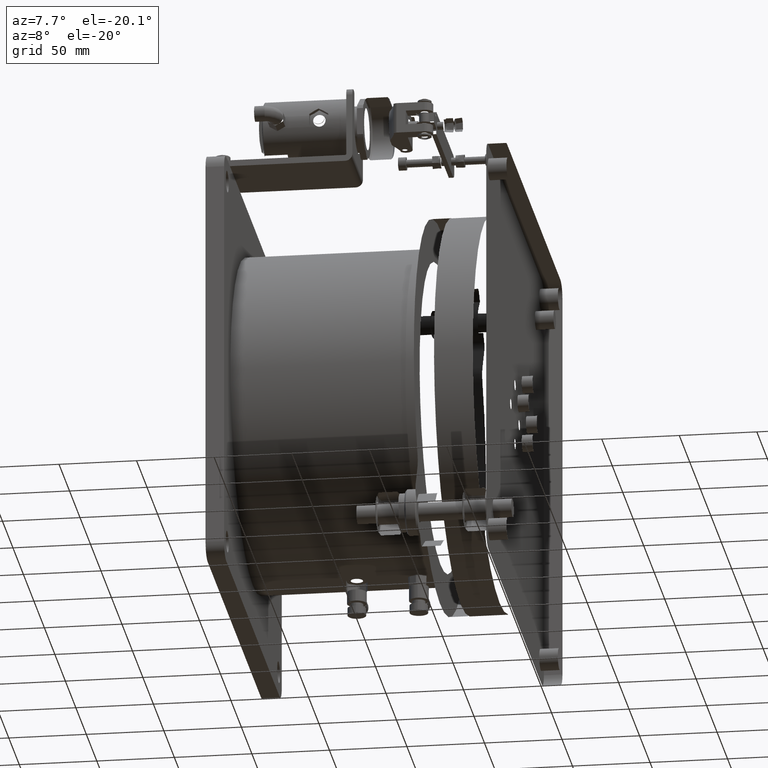
[diagram: clean part render]
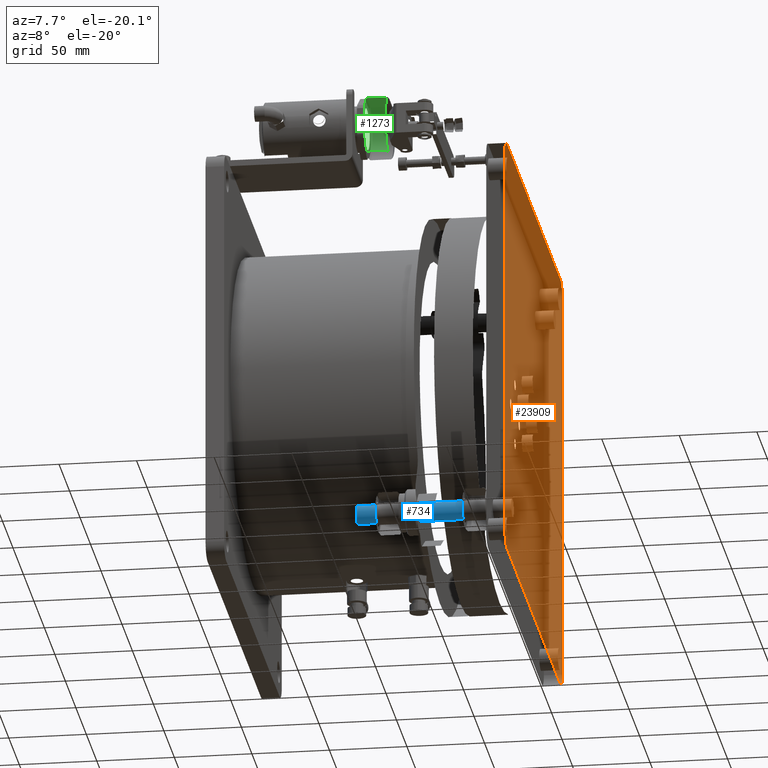
[diagram: same view with three faces highlighted in distinct colors, each labeled with its STEP entity id]
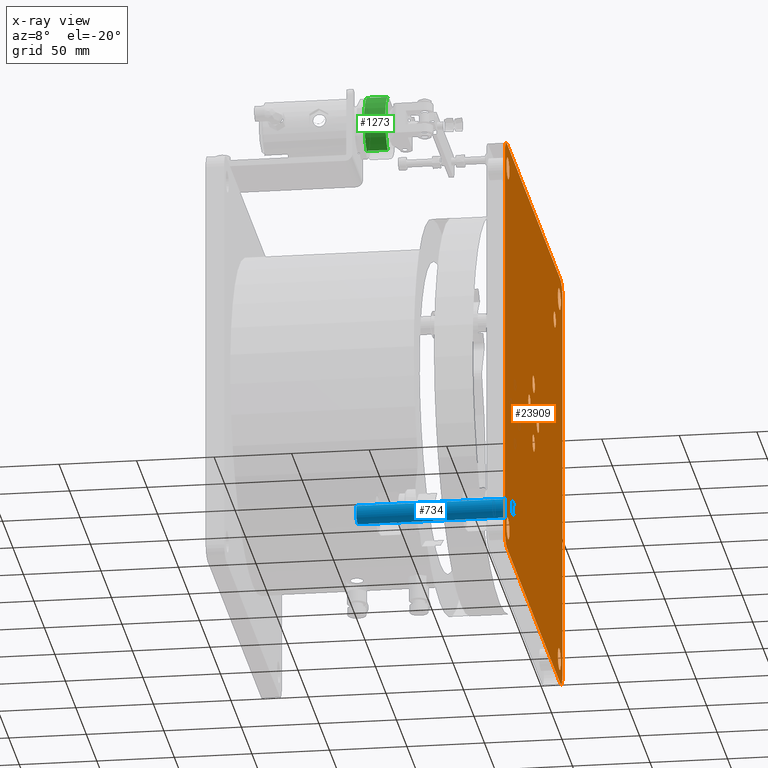
[diagram: x-ray of the same camera — body ghosted, the three highlighted faces saturated]
A machine part, auxiliary view with three faces highlighted in distinct colors.
The next image is the same camera in x-ray (body ghosted, the three faces saturated) — at least one of them is partly hidden behind the body in this view.
Their STEP definitions:

[orange] entity #23909 — the highlighted planar face has unit normal (1, 0, 0).
#72 = CARTESIAN_POINT ( 'NONE',  ( 760.2532529064094433, -110.9514340065374967, 320.4969072935293184 ) ) ;
#74 = CARTESIAN_POINT ( 'NONE',  ( 760.2532529064096707, 116.4269346752785310, 288.5684939441189840 ) ) ;
#172 = EDGE_CURVE ( 'NONE', #18632, #5377, #20006, .T. ) ;
#202 = CARTESIAN_POINT ( 'NONE',  ( 760.2532529064096707, -106.8232251716477208, 323.7112218964473414 ) ) ;
#324 = CARTESIAN_POINT ( 'NONE',  ( 760.2532529064098981, -114.6582469358364875, 321.4922531187802406 ) ) ;
#418 = DIRECTION ( 'NONE',  ( 0.000000000000000000, 1.000000000000000000, 0.000000000000000000 ) ) ;
#444 = CARTESIAN_POINT ( 'NONE',  ( 760.2532529064095570, -112.4626823020331727, 320.5466482858456629 ) ) ;
#451 = CARTESIAN_POINT ( 'NONE',  ( 760.2532529064096707, -112.6430295829798922, 330.5552960744896609 ) ) ;
#476 = CARTESIAN_POINT ( 'NONE',  ( 760.2532529064096707, 87.70326957855201044, 531.3712482051279267 ) ) ;
#541 = CARTESIAN_POINT ( 'NONE',  ( 760.2532529064097844, 91.15059977192318286, 521.7657396830934431 ) ) ;
#583 = CARTESIAN_POINT ( 'NONE',  ( 760.2532529064096707, -115.9359704439172845, 322.9218196549976483 ) ) ;
#589 = CARTESIAN_POINT ( 'NONE',  ( 760.2532529064097844, -115.8898515023916076, 328.2856607191998819 ) ) ;
#614 = CARTESIAN_POINT ( 'NONE',  ( 760.2532529064097844, 88.47977434240154082, 531.5798057435645205 ) ) ;
#714 = CARTESIAN_POINT ( 'NONE',  ( 760.2532529064097844, -113.5302936437208530, 330.2781745972658882 ) ) ;
#737 = CARTESIAN_POINT ( 'NONE',  ( 760.2532529064095570, 94.15364652930199441, 528.4841814433872287 ) ) ;
#791 = CARTESIAN_POINT ( 'NONE',  ( 760.2532529064097844, 84.32693467527839459, 526.2563752080758377 ) ) ;
#828 = CARTESIAN_POINT ( 'NONE',  ( 760.2532529064098981, -112.4807681925683340, 320.5498805688915809 ) ) ;
#832 = CARTESIAN_POINT ( 'NONE',  ( 760.2532529064097844, -116.6730653247214349, 325.8926688058249965 ) ) ;
#856 = CARTESIAN_POINT ( 'NONE',  ( 760.2532529064096707, 86.78026038612354398, 530.9313990632986133 ) ) ;
#920 = CARTESIAN_POINT ( 'NONE',  ( 760.2532529064096707, 84.47154438497423712, 525.3575819295108431 ) ) ;
#966 = CARTESIAN_POINT ( 'NONE',  ( 760.2532529064096707, -113.9974821835346575, 330.0612254758217432 ) ) ;
#1075 = DIRECTION ( 'NONE',  ( -0.000000000000000000, -1.000000000000000000, -5.551115123125781470E-17 ) ) ;
#1164 = DIRECTION ( 'NONE',  ( 0.000000000000000000, 1.000000000000000000, 0.000000000000000000 ) ) ;
#1291 = CARTESIAN_POINT ( 'NONE',  ( 760.2532529064098981, 84.63442626224659193, 528.3135241945261669 ) ) ;
#1421 = VECTOR ( 'NONE', #1075, 1000.000000000000000 ) ;
#1497 = CARTESIAN_POINT ( 'NONE',  ( 760.2532529064095570, -106.7703110637126684, 327.2921590408419661 ) ) ;
#1616 = CARTESIAN_POINT ( 'NONE',  ( 760.2532529064094433, -106.6905684890815422, 327.0582866678765299 ) ) ;
#1766 = CARTESIAN_POINT ( 'NONE',  ( 760.2532529064100117, 94.17677482835631508, 524.7112218964548447 ) ) ;
#1846 = CARTESIAN_POINT ( 'NONE',  ( 760.2532529064096707, -138.5730653247215116, 288.5684939441189840 ) ) ;
#1924 = EDGE_CURVE ( 'NONE', #22872, #22872, #4711, .T. ) ;
#2033 = CARTESIAN_POINT ( 'NONE',  ( 760.2532529064096707, -109.1486484659734657, 321.0757624123723417 ) ) ;
#2356 = CIRCLE ( 'NONE', #21216, 10.00000000000000888 ) ;
#2358 = DIRECTION ( 'NONE',  ( 0.000000000000000000, 1.000000000000000000, 0.000000000000000000 ) ) ;
#2381 = CARTESIAN_POINT ( 'NONE',  ( 760.2532529064096707, 86.92988053294241979, 522.1207355152475884 ) ) ;
#2410 = DIRECTION ( 'NONE',  ( -1.000000000000000000, -1.884943910572088157E-17, -5.246141952597420296E-18 ) ) ;
#2422 = EDGE_CURVE ( 'NONE', #13299, #13299, #25276, .T. ) ;
#2426 = CARTESIAN_POINT ( 'NONE',  ( 760.2532529064096707, -112.1946966428210715, 330.6400805947098434 ) ) ;
#2446 = CARTESIAN_POINT ( 'NONE',  ( 760.2532529064096707, 86.56411720645941443, 530.7900570453517730 ) ) ;
#2505 = CARTESIAN_POINT ( 'NONE',  ( 760.2532529064096707, 87.15531222075216533, 521.9966064593999135 ) ) ;
#2521 = DIRECTION ( 'NONE',  ( -1.000000000000000000, -1.884943910572088157E-17, -5.246141952597420296E-18 ) ) ;
#2545 = CARTESIAN_POINT ( 'NONE',  ( 760.2532529064098981, -112.3666035088061932, 320.5303429757446452 ) ) ;
#2551 = CARTESIAN_POINT ( 'NONE',  ( 760.2532529064097844, -110.6653624568743339, 330.5871073193475809 ) ) ;
#2579 = CARTESIAN_POINT ( 'NONE',  ( 760.2532529064097844, 88.21602266063493403, 531.5238842344248269 ) ) ;
#2641 = CARTESIAN_POINT ( 'NONE',  ( 760.2532529064096707, 84.44013254490825204, 525.4985296858890251 ) ) ;
#2683 = CARTESIAN_POINT ( 'NONE',  ( 760.2532529064094433, -116.2827459778687711, 323.6112656251163457 ) ) ;
#2689 = CARTESIAN_POINT ( 'NONE',  ( 760.2532529064096707, -116.6730653247214349, 325.5684939441196661 ) ) ;
#2714 = CARTESIAN_POINT ( 'NONE',  ( 760.2532529064098981, 94.30943151089859100, 528.0582866679313838 ) ) ;
#2777 = CARTESIAN_POINT ( 'NONE',  ( 760.2532529064096707, 87.70427114160780491, 521.7680553047671310 ) ) ;
#2815 = CARTESIAN_POINT ( 'NONE',  ( 760.2532529064097844, -116.3758195857232494, 323.8448288473828711 ) ) ;
#2820 = CARTESIAN_POINT ( 'NONE',  ( 760.2532529064098981, -116.6283053666487604, 326.3704603294497133 ) ) ;
#2843 = CARTESIAN_POINT ( 'NONE',  ( 760.2532529064098981, 87.51124717600310987, 531.2952057981400458 ) ) ;
#2893 = DIRECTION ( 'NONE',  ( -1.884943910572087849E-17, 1.000000000000000000, 0.000000000000000000 ) ) ;
#2901 = CARTESIAN_POINT ( 'NONE',  ( 760.2532529064096707, 84.62418041427073945, 524.8448288474195351 ) ) ;
#2938 = CARTESIAN_POINT ( 'NONE',  ( 760.2532529064096707, -111.7288593227190034, 320.4684777429763471 ) ) ;
#2941 = CARTESIAN_POINT ( 'NONE',  ( 760.2532529064097844, -114.2197396138350030, 329.9313990633128810 ) ) ;
#3146 = CARTESIAN_POINT ( 'NONE',  ( 760.2532529064097844, 85.11014849760844925, 529.2856607191960165 ) ) ;
#3283 = FACE_BOUND ( 'NONE', #11393, .T. ) ;
#3308 = ORIENTED_EDGE ( 'NONE', *, *, #1924, .F. ) ;
#3347 = CARTESIAN_POINT ( 'NONE',  ( 760.2532529064097844, 94.18365843433021212, 524.7289312527134371 ) ) ;
#3398 = CARTESIAN_POINT ( 'NONE',  ( 760.2532529064096707, -148.5730653247215969, 553.5684939441190409 ) ) ;
#3400 = ORIENTED_EDGE ( 'NONE', *, *, #11598, .F. ) ;
#3482 = CARTESIAN_POINT ( 'NONE',  ( 760.2532529064096707, 94.48217471720566607, 525.7665275587504539 ) ) ;
#3590 = CARTESIAN_POINT ( 'NONE',  ( 760.2532529064094433, -106.8463534707006488, 327.4841814433959826 ) ) ;
#3736 = CARTESIAN_POINT ( 'NONE',  ( 760.2532529064097844, 94.35162483949365253, 525.2239279601643602 ) ) ;
#3873 = CARTESIAN_POINT ( 'NONE',  ( 760.2532529064098981, -107.2119384322802063, 322.9231120052955362 ) ) ;
#4020 = EDGE_LOOP ( 'NONE', ( #14168 ) ) ;
#4036 = DIRECTION ( 'NONE',  ( -1.000000000000000000, -1.884943910572088157E-17, -5.246141952597420296E-18 ) ) ;
#4077 = CARTESIAN_POINT ( 'NONE',  ( 760.2532529064096707, -5.573065324721434344, 446.0684939441190409 ) ) ;
#4098 = CARTESIAN_POINT ( 'NONE',  ( 760.2532529064096707, -133.5730653247215116, 303.5684939441189840 ) ) ;
#4194 = AXIS2_PLACEMENT_3D ( 'NONE', #23284, #21304, #7005 ) ;
#4256 = CARTESIAN_POINT ( 'NONE',  ( 760.2532529064097844, -107.0011778400032370, 323.2968714896101119 ) ) ;
#4418 = CARTESIAN_POINT ( 'NONE',  ( 760.2532529064097844, 90.75792696659294734, 531.4966502442998717 ) ) ;
#4477 = CARTESIAN_POINT ( 'NONE',  ( 760.2532529064096707, 88.57573866458072587, 521.5399929745734653 ) ) ;
#4520 = CARTESIAN_POINT ( 'NONE',  ( 760.2532529064096707, -110.7218693140441275, 330.5969949136652986 ) ) ;
#4542 = CARTESIAN_POINT ( 'NONE',  ( 760.2532529064096707, 93.15754576566415324, 530.0503982812749655 ) ) ;
#4633 = EDGE_CURVE ( 'NONE', #5647, #15142, #13037, .T. ) ;
#4637 = CARTESIAN_POINT ( 'NONE',  ( 760.2532529064095570, -115.3036764151995328, 322.0865896070903887 ) ) ;
#4643 = CARTESIAN_POINT ( 'NONE',  ( 760.2532529064096707, -109.9670649316978484, 330.4102879343071777 ) ) ;
#4670 = CARTESIAN_POINT ( 'NONE',  ( 760.2532529064096707, 94.42612011840050457, 527.5777290063921328 ) ) ;
#4711 = CIRCLE ( 'NONE', #13556, 7.000000000000006217 ) ;
#4714 = AXIS2_PLACEMENT_3D ( 'NONE', #9579, #17597, #9710 ) ;
#4731 = CARTESIAN_POINT ( 'NONE',  ( 760.2532529064096707, 85.25644703844525907, 523.6316860299119753 ) ) ;
#4772 = CARTESIAN_POINT ( 'NONE',  ( 760.2532529064097844, -115.6401280839937442, 322.4899874430057594 ) ) ;
#4777 = CARTESIAN_POINT ( 'NONE',  ( 760.2532529064098981, -113.4887528239941616, 330.2952057981408984 ) ) ;
#4802 = CARTESIAN_POINT ( 'NONE',  ( 760.2532529064095570, 92.51211628622270666, 530.6447347695610688 ) ) ;
#4860 = FACE_BOUND ( 'NONE', #5291, .T. ) ;
#4876 = CARTESIAN_POINT ( 'NONE',  ( 760.2532529064096707, 118.4269346752785168, 548.5684939441191545 ) ) ;
#4903 = CARTESIAN_POINT ( 'NONE',  ( 760.2532529064097844, -112.4242613353997058, 320.5399929745740906 ) ) ;
#4932 = CARTESIAN_POINT ( 'NONE',  ( 760.2532529064095570, 90.51741583834014193, 531.5533033525833844 ) ) ;
#4961 = B_SPLINE_CURVE_WITH_KNOTS ( 'NONE', 3,
 ( #13750, #13617, #3482, #3736, #21339, #17812, #19770, #3347, #1766, #25803, #7826, #15849, #23832, #25929, #7949, #5448, #5846, #23319, #5319, #11498, #11365, #17425, #25410, #7431, #15456, #17553, #23447, #541, #14010, #8560, #12507, #6465, #14737, #8424, #16838, #8811, #21994, #20894, #20772, #18544, #4477, #16719, #16451, #15972, #14867, #20640, #2777, #20513, #20396, #24820, #2505, #2381, #18918, #22597, #12766, #22472, #6716, #22728, #16590, #4731, #24691, #23961, #10789, #24435, #10660, #24566, #6848, #2901, #22860, #920, #2641, #14486, #10529, #18804, #10908, #791, #6596 ),
 .UNSPECIFIED., .F., .F.,
 ( 4, 1, 1, 1, 1, 2, 2, 1, 2, 2, 2, 1, 2, 2, 1, 1, 2, 2, 1, 1, 1, 2, 2, 2, 1, 1, 1, 2, 2, 1, 1, 2, 2, 1, 2, 2, 2, 1, 2, 2, 1, 1, 2, 2, 1, 1, 1, 2, 2, 4 ),
 ( 0.000000000000000000, 0.06250000000033111014, 0.09375000000049692195, 0.1093750000005798140, 0.1171875000006217110, 0.1210937500006321194, 0.1250000000006425138, 0.1562500000005992429, 0.1718750000005781764, 0.1875000000005571099, 0.2500000000004893863, 0.2812500000004546363, 0.2968750000004445333, 0.3125000000004343748, 0.3437500000004118927, 0.3593750000004064526, 0.3671875000004007350, 0.3750000000003949618, 0.4062500000003491651, 0.4218750000003275158, 0.4296875000003166911, 0.4335937500003112510, 0.4375000000003058664, 0.5000000000002677858, 0.5312500000002502443, 0.5468750000002404743, 0.5546875000002371436, 0.5585937500002322587, 0.5625000000002273737, 0.5937500000002154943, 0.6093750000002107203, 0.6171875000002096101, 0.6250000000002084999, 0.6562500000002037259, 0.6718750000002060574, 0.6875000000002082778, 0.7500000000002233769, 0.7812500000002249312, 0.7968750000002187139, 0.8125000000002126077, 0.8437500000002002842, 0.8593750000001941780, 0.8671875000001909584, 0.8750000000001878497, 0.9062500000001755263, 0.9218750000001694200, 0.9296875000001666445, 0.9335937500001751932, 0.9375000000001838529, 1.000000000000000000 ),
 .UNSPECIFIED. ) ;
#4984 = FACE_BOUND ( 'NONE', #10462, .T. ) ;
#5101 = CARTESIAN_POINT ( 'NONE',  ( 760.2532529064096707, -116.6730653247214349, 325.5684939441196661 ) ) ;
#5114 = EDGE_LOOP ( 'NONE', ( #17768 ) ) ;
#5163 = CARTESIAN_POINT ( 'NONE',  ( 760.2532529064097844, -107.6663752890946597, 328.8552087407537101 ) ) ;
#5209 = ORIENTED_EDGE ( 'NONE', *, *, #14802, .T. ) ;
#5239 = CARTESIAN_POINT ( 'NONE',  ( 760.2532529064096707, 86.14021987859717910, 530.4751839797105504 ) ) ;
#5291 = EDGE_LOOP ( 'NONE', ( #3308 ) ) ;
#5319 = CARTESIAN_POINT ( 'NONE',  ( 760.2532529064097844, 92.50544117639907427, 522.5014311848502757 ) ) ;
#5367 = CARTESIAN_POINT ( 'NONE',  ( 760.2532529064098981, 84.32693467527840880, 526.8926688058223817 ) ) ;
#5377 = VERTEX_POINT ( 'NONE', #21705 ) ;
#5427 = CARTESIAN_POINT ( 'NONE',  ( 760.2532529064095570, -107.4025776879050085, 328.5053018583453763 ) ) ;
#5448 = CARTESIAN_POINT ( 'NONE',  ( 760.2532529064096707, 93.28185975336440094, 523.2109823729160780 ) ) ;
#5526 = EDGE_CURVE ( 'NONE', #11445, #11445, #23251, .T. ) ;
#5557 = CARTESIAN_POINT ( 'NONE',  ( 760.2532529064095570, -106.8633846715776912, 327.5257222631306036 ) ) ;
#5647 = VERTEX_POINT ( 'NONE', #20511 ) ;
#5826 = DIRECTION ( 'NONE',  ( -0.000000000000000000, 1.000000000000000000, 5.551115123125781470E-17 ) ) ;
#5846 = CARTESIAN_POINT ( 'NONE',  ( 760.2532529064098981, 92.90883901231246966, 522.8378828536433502 ) ) ;
#5854 = CARTESIAN_POINT ( 'NONE',  ( 760.2532529064098981, -108.0911609877052655, 321.8378828536263541 ) ) ;
#5882 = AXIS2_PLACEMENT_3D ( 'NONE', #16479, #14894, #17001 ) ;
#5926 = CARTESIAN_POINT ( 'NONE',  ( 760.2532529064096707, -5.573065324721432567, 406.0684939441189272 ) ) ;
#5992 = CARTESIAN_POINT ( 'NONE',  ( 760.2532529064097844, -109.8494002279956874, 320.7657396831185110 ) ) ;
#6128 = CARTESIAN_POINT ( 'NONE',  ( 760.2532529064094433, -111.2614773287263006, 320.4685263464062928 ) ) ;
#6174 = EDGE_LOOP ( 'NONE', ( #14902 ) ) ;
#6224 = LINE ( 'NONE', #15952, #19832 ) ;
#6250 = CARTESIAN_POINT ( 'NONE',  ( 760.2532529064098981, -106.4730653247214605, 325.2443190824317298 ) ) ;
#6378 = CARTESIAN_POINT ( 'NONE',  ( 760.2532529064096707, -116.6446844510296046, 324.9470380189865750 ) ) ;
#6465 = CARTESIAN_POINT ( 'NONE',  ( 760.2532529064095570, 90.43616973750123122, 521.5693085009839933 ) ) ;
#6505 = CARTESIAN_POINT ( 'NONE',  ( 760.2532529064096707, -116.5598674550870868, 324.4985296858615698 ) ) ;
#6510 = CARTESIAN_POINT ( 'NONE',  ( 760.2532529064095570, -111.1844243823165499, 330.6578794684860441 ) ) ;
#6536 = CARTESIAN_POINT ( 'NONE',  ( 760.2532529064097844, 91.46430546289819574, 531.2470557382367815 ) ) ;
#6596 = CARTESIAN_POINT ( 'NONE',  ( 760.2532529064096707, 84.32693467527839459, 526.5684939441189272 ) ) ;
#6634 = CARTESIAN_POINT ( 'NONE',  ( 760.2532529064095570, -111.9617062671298982, 320.4791084197534587 ) ) ;
#6638 = CARTESIAN_POINT ( 'NONE',  ( 760.2532529064097844, -111.4172713267259098, 330.6685101452629283 ) ) ;
#6658 = CARTESIAN_POINT ( 'NONE',  ( 760.2532529064094433, 94.10293619545412014, 528.6049032820770890 ) ) ;
#6716 = CARTESIAN_POINT ( 'NONE',  ( 760.2532529064095570, 85.69632358481933920, 523.0865896070567942 ) ) ;
#6742 = CIRCLE ( 'NONE', #4194, 10.00000000000000888 ) ;
#6756 = CARTESIAN_POINT ( 'NONE',  ( 760.2532529064096707, -112.2318839435847622, 320.5101570883539921 ) ) ;
#6764 = CARTESIAN_POINT ( 'NONE',  ( 760.2532529064097844, -116.3442428202342569, 327.3702701302773903 ) ) ;
#6788 = CARTESIAN_POINT ( 'NONE',  ( 760.2532529064096707, 90.08575329420239086, 531.6268307998848286 ) ) ;
#6794 = CIRCLE ( 'NONE', #14350, 7.000000000000006217 ) ;
#6848 = CARTESIAN_POINT ( 'NONE',  ( 760.2532529064098981, 84.70022282125731294, 524.6528064448368696 ) ) ;
#6894 = CARTESIAN_POINT ( 'NONE',  ( 760.2532529064095570, -114.8597801213679475, 329.4751839797576167 ) ) ;
#6918 = CARTESIAN_POINT ( 'NONE',  ( 760.2532529064095570, 90.31655165260133344, 531.5903396023931009 ) ) ;
#7005 = DIRECTION ( 'NONE',  ( 0.000000000000000000, 1.000000000000000000, 0.000000000000000000 ) ) ;
#7020 = CARTESIAN_POINT ( 'NONE',  ( 760.2532529064097844, -113.6094746626329197, 330.2444954643113419 ) ) ;
#7043 = CARTESIAN_POINT ( 'NONE',  ( 760.2532529064097844, 92.14410145037258815, 530.8852801217774413 ) ) ;
#7045 = CARTESIAN_POINT ( 'NONE',  ( 760.2532529064096707, -133.5730653247215400, 548.5684939441191545 ) ) ;
#7085 = CARTESIAN_POINT ( 'NONE',  ( 760.2532529064097844, 84.74837288113123179, 528.6058647316949646 ) ) ;
#7093 = FACE_BOUND ( 'NONE', #6174, .T. ) ;
#7142 = CARTESIAN_POINT ( 'NONE',  ( 760.2532529064098981, -106.8970638045341275, 327.6049032820517937 ) ) ;
#7184 = B_SPLINE_CURVE_WITH_KNOTS ( 'NONE', 3,
 ( #12155, #6250, #22248, #25811, #14271, #24110, #21745, #7834, #202, #22133, #4256, #23716, #3873, #7960, #23841, #24230, #5854, #12033, #9943, #20050, #17954, #25939, #2033, #15980, #12288, #16120, #23973, #5992, #20307, #14022, #8223, #10319, #18329, #18071, #72, #6128, #2938, #6634, #6756, #2545, #4903, #444, #828, #20551, #22639, #22511, #14780, #20811, #16755, #22902, #18584, #8849, #10571, #8339, #324, #12808, #4637, #24474, #4772, #16362, #20677, #583, #14907, #24859, #8468, #2683, #8603, #2815, #12930, #22768, #6505, #24728, #10701, #20929, #6378, #18716, #24345 ),
 .UNSPECIFIED., .F., .F.,
 ( 4, 1, 1, 1, 1, 2, 2, 1, 2, 2, 2, 1, 2, 2, 1, 1, 2, 2, 1, 1, 1, 2, 2, 2, 1, 1, 1, 2, 2, 1, 1, 2, 2, 1, 2, 2, 2, 1, 2, 2, 1, 1, 2, 2, 1, 1, 1, 2, 2, 4 ),
 ( 0.000000000000000000, 0.06249999999993477440, 0.09374999999990241140, 0.1093749999998858552, 0.1171874999998771399, 0.1210937499998773481, 0.1249999999998775702, 0.1562499999998699096, 0.1718749999998666622, 0.1874999999998634426, 0.2499999999998435696, 0.2812499999998379629, 0.2968749999998361866, 0.3124999999998343547, 0.3437499999998285261, 0.3593749999998268607, 0.3671874999998250844, 0.3749999999998233080, 0.4062499999998263056, 0.4218749999998291367, 0.4296874999998318012, 0.4335937499998330780, 0.4374999999998344102, 0.4999999999998561151, 0.5312499999998669953, 0.5468749999998724354, 0.5546874999998731015, 0.5585937499998724354, 0.5624999999998717692, 0.5937499999998766542, 0.6093749999998803180, 0.6171874999998820943, 0.6249999999998839817, 0.6562499999998935296, 0.6718749999998959721, 0.6874999999998984146, 0.7499999999999158451, 0.7812499999999271694, 0.7968749999999328315, 0.8124999999999384936, 0.8437499999999414912, 0.8593749999999434896, 0.8671874999999403810, 0.8749999999999373834, 0.9062499999999329425, 0.9218749999999256151, 0.9296874999999220623, 0.9335937499999253930, 0.9374999999999287237, 1.000000000000000000 ),
 .UNSPECIFIED. ) ;
#7210 = CARTESIAN_POINT ( 'NONE',  ( 760.2532529064096707, 14.42693467527857010, 426.0684939441189272 ) ) ;
#7211 = EDGE_LOOP ( 'NONE', ( #3400, #15031, #18540, #17253, #24160, #5209, #18320, #7811 ) ) ;
#7214 = CARTESIAN_POINT ( 'NONE',  ( 760.2532529064094433, 85.57200959734500145, 529.9260055154337579 ) ) ;
#7360 = FACE_OUTER_BOUND ( 'NONE', #7211, .T. ) ;
#7431 = CARTESIAN_POINT ( 'NONE',  ( 760.2532529064095570, 91.58135126017539562, 521.9444505739919578 ) ) ;
#7437 = CARTESIAN_POINT ( 'NONE',  ( 760.2532529064096707, 126.4269346752785452, 553.5684939441190409 ) ) ;
#7534 = CARTESIAN_POINT ( 'NONE',  ( 760.2532529064094433, -108.4878837136808016, 329.6447347695017811 ) ) ;
#7558 = EDGE_CURVE ( 'NONE', #18578, #24280, #25633, .T. ) ;
#7604 = VERTEX_POINT ( 'NONE', #11548 ) ;
#7667 = CARTESIAN_POINT ( 'NONE',  ( 760.2532529064097844, -108.8558985496513571, 329.8852801217930732 ) ) ;
#7709 = ORIENTED_EDGE ( 'NONE', *, *, #5526, .F. ) ;
#7809 = CARTESIAN_POINT ( 'NONE',  ( 760.2532529064096707, 84.32693467527839459, 526.5684939441189272 ) ) ;
#7811 = ORIENTED_EDGE ( 'NONE', *, *, #16032, .T. ) ;
#7826 = CARTESIAN_POINT ( 'NONE',  ( 760.2532529064095570, 93.99882215993795853, 524.2968714894979030 ) ) ;
#7834 = CARTESIAN_POINT ( 'NONE',  ( 760.2532529064094433, -106.8163415656696316, 323.7289312527189509 ) ) ;
#7949 = CARTESIAN_POINT ( 'NONE',  ( 760.2532529064095570, 93.50317550062656835, 523.4833123330168974 ) ) ;
#7958 = B_SPLINE_CURVE_WITH_KNOTS ( 'NONE', 3,
 ( #13271, #5367, #9187, #20997, #13401, #1291, #25064, #11028, #17207, #7085, #19036, #23096, #25186, #3146, #19296, #7214, #11162, #5239, #21262, #12837, #2446, #856, #12447, #16780, #22415, #25019, #2843, #476, #8633, #2579, #20460, #8497, #17045, #614, #18480, #18745, #10597, #24891, #6788, #16525, #9016, #6918, #18861, #4932, #4418, #10472, #16910, #10730, #24502, #6536, #22800, #8878, #14554, #7043, #4802, #22538, #4542, #16659, #12572, #20577, #18612, #12704, #8753, #24634, #6658, #14678, #737, #10853, #2714, #22666, #20707, #4670, #24757, #14809, #14935, #20838, #22932 ),
 .UNSPECIFIED., .F., .F.,
 ( 4, 1, 1, 1, 1, 2, 2, 1, 2, 2, 2, 1, 2, 2, 1, 1, 2, 2, 1, 1, 1, 2, 2, 2, 1, 1, 1, 2, 2, 1, 1, 2, 2, 1, 2, 2, 2, 1, 2, 2, 1, 1, 2, 2, 1, 1, 1, 2, 2, 4 ),
 ( 0.000000000000000000, 0.06249999999998166744, 0.09374999999997274402, 0.1093749999999686640, 0.1171874999999670680, 0.1210937499999667349, 0.1249999999999663880, 0.1562499999999974742, 0.1718750000000136002, 0.1875000000000296985, 0.2500000000000473510, 0.2812500000000483502, 0.2968750000000560108, 0.3125000000000637268, 0.3437500000000769940, 0.3593750000000778266, 0.3671875000000824341, 0.3750000000000869860, 0.4062500000000977551, 0.4218750000001031397, 0.4296875000001021405, 0.4335937500001016409, 0.4375000000001011413, 0.5000000000001069145, 0.5312500000001096900, 0.5468750000001121325, 0.5546875000001104672, 0.5585937500001113554, 0.5625000000001123546, 0.5937500000001121325, 0.6093750000001133538, 0.6171875000001139089, 0.6250000000001145750, 0.6562500000001215694, 0.6718750000001286748, 0.6875000000001357803, 0.7500000000001509903, 0.7812500000001508793, 0.7968750000001585398, 0.8125000000001660894, 0.8437500000001644240, 0.8593750000001636469, 0.8671875000001534328, 0.8750000000001432188, 0.9062500000001213474, 0.9218750000001099121, 0.9296875000001145750, 0.9335937500001064704, 0.9375000000000984768, 1.000000000000000000 ),
 .UNSPECIFIED. ) ;
#7960 = CARTESIAN_POINT ( 'NONE',  ( 760.2532529064097844, -107.2562791470516004, 322.8513271690529223 ) ) ;
#8188 = DIRECTION ( 'NONE',  ( -1.000000000000000000, -1.884943910572088157E-17, -5.246141952597420296E-18 ) ) ;
#8223 = CARTESIAN_POINT ( 'NONE',  ( 760.2532529064096707, -110.5031010664716575, 320.5816918137545599 ) ) ;
#8339 = CARTESIAN_POINT ( 'NONE',  ( 760.2532529064097844, -114.2902320997730072, 321.2517077664357998 ) ) ;
#8424 = CARTESIAN_POINT ( 'NONE',  ( 760.2532529064097844, 90.37409500815599017, 521.5571821446734475 ) ) ;
#8468 = CARTESIAN_POINT ( 'NONE',  ( 760.2532529064097844, -116.2490668449153048, 323.5320846062012379 ) ) ;
#8497 = CARTESIAN_POINT ( 'NONE',  ( 760.2532529064096707, 88.41769961301790204, 531.5676793872462440 ) ) ;
#8517 = AXIS2_PLACEMENT_3D ( 'NONE', #24937, #8927, #1164 ) ;
#8560 = CARTESIAN_POINT ( 'NONE',  ( 760.2532529064097844, 90.63784668981469395, 521.6131036537914270 ) ) ;
#8603 = CARTESIAN_POINT ( 'NONE',  ( 760.2532529064096707, -116.2997771787439802, 323.6528064448468740 ) ) ;
#8609 = CARTESIAN_POINT ( 'NONE',  ( 760.2532529064096707, -110.2420730336186949, 330.4966502443566014 ) ) ;
#8633 = CARTESIAN_POINT ( 'NONE',  ( 760.2532529064098981, 87.93714195151433444, 531.4509907797595361 ) ) ;
#8753 = CARTESIAN_POINT ( 'NONE',  ( 760.2532529064097844, 93.91966620694768153, 528.9929108030296447 ) ) ;
#8811 = CARTESIAN_POINT ( 'NONE',  ( 760.2532529064096707, 89.73852267135779925, 521.4685263464053833 ) ) ;
#8849 = CARTESIAN_POINT ( 'NONE',  ( 760.2532529064097844, -114.0701194670798913, 321.1207355152610035 ) ) ;
#8855 = CARTESIAN_POINT ( 'NONE',  ( 760.2532529064096707, -116.3229054777997078, 327.4257659917815317 ) ) ;
#8878 = CARTESIAN_POINT ( 'NONE',  ( 760.2532529064096707, 91.92398881774924746, 531.0162523729101167 ) ) ;
#8921 = VERTEX_POINT ( 'NONE', #22842 ) ;
#8927 = DIRECTION ( 'NONE',  ( -1.000000000000000000, -1.884943910572088157E-17, -5.246141952597420296E-18 ) ) ;
#8986 = CARTESIAN_POINT ( 'NONE',  ( 760.2532529064096707, -113.7274819096792129, 330.1925373141970681 ) ) ;
#9016 = CARTESIAN_POINT ( 'NONE',  ( 760.2532529064098981, 90.27813068597795620, 531.5969949136647301 ) ) ;
#9069 = PLANE ( 'NONE',  #25778 ) ;
#9120 = CARTESIAN_POINT ( 'NONE',  ( 760.2532529064096707, -109.0760111823474432, 330.0162523729721329 ) ) ;
#9167 = EDGE_LOOP ( 'NONE', ( #14075, #16699 ) ) ;
#9187 = CARTESIAN_POINT ( 'NONE',  ( 760.2532529064096707, 84.37169463335111175, 527.3704603294457911 ) ) ;
#9299 = VECTOR ( 'NONE', #22087, 1000.000000000000000 ) ;
#9579 = CARTESIAN_POINT ( 'NONE',  ( 760.2532529064096707, 8.926934675278570097, 426.0684939441189272 ) ) ;
#9710 = DIRECTION ( 'NONE',  ( 0.000000000000000000, 1.000000000000000000, 0.000000000000000000 ) ) ;
#9828 = ORIENTED_EDGE ( 'NONE', *, *, #20817, .F. ) ;
#9887 = VERTEX_POINT ( 'NONE', #1846 ) ;
#9943 = CARTESIAN_POINT ( 'NONE',  ( 760.2532529064097844, -108.4945588236252974, 321.5014311848263446 ) ) ;
#10020 = CARTESIAN_POINT ( 'NONE',  ( 760.2532529064096707, -148.5730653247215685, 288.5684939441189840 ) ) ;
#10268 = AXIS2_PLACEMENT_3D ( 'NONE', #13714, #25232, #21306 ) ;
#10319 = CARTESIAN_POINT ( 'NONE',  ( 760.2532529064100117, -110.5638302624613232, 320.5693085009960441 ) ) ;
#10462 = EDGE_LOOP ( 'NONE', ( #25007, #23044 ) ) ;
#10472 = CARTESIAN_POINT ( 'NONE',  ( 760.2532529064096707, 91.03293506846085847, 531.4102879342648293 ) ) ;
#10529 = CARTESIAN_POINT ( 'NONE',  ( 760.2532529064095570, 84.41973344685030156, 525.5998167935644005 ) ) ;
#10571 = CARTESIAN_POINT ( 'NONE',  ( 760.2532529064098981, -114.2184472635683363, 321.2073670516861057 ) ) ;
#10575 = CARTESIAN_POINT ( 'NONE',  ( 760.2532529064097844, -110.4825841617807640, 330.5533033526160125 ) ) ;
#10597 = CARTESIAN_POINT ( 'NONE',  ( 760.2532529064094433, 89.58272867332217970, 531.6685101452623030 ) ) ;
#10660 = CARTESIAN_POINT ( 'NONE',  ( 760.2532529064094433, 84.75093315506187253, 524.5320846062379587 ) ) ;
#10701 = CARTESIAN_POINT ( 'NONE',  ( 760.2532529064097844, -116.5802665531480642, 324.5998167935562151 ) ) ;
#10707 = CARTESIAN_POINT ( 'NONE',  ( 760.2532529064096707, -111.8846533207124878, 330.6684615418330964 ) ) ;
#10730 = CARTESIAN_POINT ( 'NONE',  ( 760.2532529064096707, 91.22710753062216327, 531.3403972535336379 ) ) ;
#10753 = EDGE_CURVE ( 'NONE', #20328, #16372, #2356, .T. ) ;
#10789 = CARTESIAN_POINT ( 'NONE',  ( 760.2532529064096707, 84.93420314352452749, 524.1440770853693039 ) ) ;
#10828 = CARTESIAN_POINT ( 'NONE',  ( 760.2532529064095570, -115.6493061501164874, 328.6536755551202305 ) ) ;
#10853 = CARTESIAN_POINT ( 'NONE',  ( 760.2532529064094433, 94.22968893627589182, 528.2921590408730026 ) ) ;
#10908 = CARTESIAN_POINT ( 'NONE',  ( 760.2532529064096707, 84.35531554897021067, 525.9470380189752632 ) ) ;
#10928 = ORIENTED_EDGE ( 'NONE', *, *, #2422, .F. ) ;
#11028 = CARTESIAN_POINT ( 'NONE',  ( 760.2532529064096707, 84.67021091622660833, 528.4080566355214614 ) ) ;
#11036 = FACE_BOUND ( 'NONE', #5114, .T. ) ;
#11162 = CARTESIAN_POINT ( 'NONE',  ( 760.2532529064100117, 85.94503033816801008, 530.2991050345387976 ) ) ;
#11222 = CARTESIAN_POINT ( 'NONE',  ( 760.2532529064094433, -108.2155537534471250, 329.4234190221071117 ) ) ;
#11297 = FACE_BOUND ( 'NONE', #9167, .T. ) ;
#11365 = CARTESIAN_POINT ( 'NONE',  ( 760.2532529064096707, 92.28975214414110440, 522.3469308429116609 ) ) ;
#11393 = EDGE_LOOP ( 'NONE', ( #7709 ) ) ;
#11445 = VERTEX_POINT ( 'NONE', #5926 ) ;
#11498 = CARTESIAN_POINT ( 'NONE',  ( 760.2532529064097844, 92.36374258946094074, 522.3980063072713165 ) ) ;
#11548 = CARTESIAN_POINT ( 'NONE',  ( 760.2532529064096707, 118.4269346752785310, 303.5684939441189840 ) ) ;
#11598 = EDGE_CURVE ( 'NONE', #20328, #25648, #21287, .T. ) ;
#11609 = CARTESIAN_POINT ( 'NONE',  ( 760.2532529064097844, -107.5060025655017029, 328.6470004453081515 ) ) ;
#11824 = CIRCLE ( 'NONE', #17286, 5.500000000000001776 ) ;
#12033 = CARTESIAN_POINT ( 'NONE',  ( 760.2532529064097844, -108.2863505282050056, 321.6618039083992926 ) ) ;
#12155 = CARTESIAN_POINT ( 'NONE',  ( 760.2532529064096707, -106.4730653247214462, 325.5684939441196661 ) ) ;
#12288 = CARTESIAN_POINT ( 'NONE',  ( 760.2532529064098981, -109.5366559868414669, 320.8924924239063898 ) ) ;
#12323 = DIRECTION ( 'NONE',  ( -1.000000000000000000, -1.884943910572088157E-17, -5.246141952597420296E-18 ) ) ;
#12365 = VERTEX_POINT ( 'NONE', #7809 ) ;
#12424 = CARTESIAN_POINT ( 'NONE',  ( 760.2532529064096707, -112.5417424752850053, 330.5756951725477393 ) ) ;
#12447 = CARTESIAN_POINT ( 'NONE',  ( 760.2532529064095570, 87.00251781639290982, 531.0612254757974142 ) ) ;
#12507 = CARTESIAN_POINT ( 'NONE',  ( 760.2532529064095570, 90.49689893346615577, 521.5816918137353468 ) ) ;
#12551 = CARTESIAN_POINT ( 'NONE',  ( 760.2532529064095570, -110.6834483474101631, 330.5903396023935557 ) ) ;
#12572 = CARTESIAN_POINT ( 'NONE',  ( 760.2532529064096707, 93.49399743442364752, 529.6470004454068885 ) ) ;
#12678 = CARTESIAN_POINT ( 'NONE',  ( 760.2532529064093296, -109.8504017910750008, 330.3689325834832857 ) ) ;
#12704 = CARTESIAN_POINT ( 'NONE',  ( 760.2532529064096707, 93.78983979445278862, 529.2151682332882956 ) ) ;
#12766 = CARTESIAN_POINT ( 'NONE',  ( 760.2532529064097844, 86.34175306425083818, 522.4922531187189634 ) ) ;
#12808 = CARTESIAN_POINT ( 'NONE',  ( 760.2532529064094433, -114.9305768959193443, 321.7135688660241044 ) ) ;
#12837 = CARTESIAN_POINT ( 'NONE',  ( 760.2532529064095570, 86.49012676102900343, 530.7389815809174252 ) ) ;
#12930 = CARTESIAN_POINT ( 'NONE',  ( 760.2532529064096707, -116.4555621603490465, 324.0787012203372797 ) ) ;
#12934 = CARTESIAN_POINT ( 'NONE',  ( 760.2532529064097844, -114.5098732389534177, 329.7389815809416405 ) ) ;
#13037 = LINE ( 'NONE', #23008, #1421 ) ;
#13061 = CARTESIAN_POINT ( 'NONE',  ( 760.2532529064097844, -109.5356945371721054, 330.2470557382820857 ) ) ;
#13160 = DIRECTION ( 'NONE',  ( -0.000000000000000000, -5.551115123125781470E-17, 1.000000000000000000 ) ) ;
#13200 = CARTESIAN_POINT ( 'NONE',  ( 760.2532529064097844, -109.7358042481518936, 330.3262539148521455 ) ) ;
#13271 = CARTESIAN_POINT ( 'NONE',  ( 760.2532529064096707, 84.32693467527839459, 526.5684939441189272 ) ) ;
#13278 = FACE_BOUND ( 'NONE', #19432, .T. ) ;
#13299 = VERTEX_POINT ( 'NONE', #19322 ) ;
#13332 = CARTESIAN_POINT ( 'NONE',  ( 760.2532529064097844, -109.3014428701468717, 330.1403814288148055 ) ) ;
#13401 = CARTESIAN_POINT ( 'NONE',  ( 760.2532529064097844, 84.58710193157600088, 528.1806537659326750 ) ) ;
#13556 = AXIS2_PLACEMENT_3D ( 'NONE', #24448, #2521, #418 ) ;
#13596 = CARTESIAN_POINT ( 'NONE',  ( 760.2532529064096707, -106.5617555550084035, 326.5156652390597856 ) ) ;
#13617 = CARTESIAN_POINT ( 'NONE',  ( 760.2532529064095570, 94.52693467527836901, 526.2443190823915984 ) ) ;
#13689 = EDGE_CURVE ( 'NONE', #22074, #22074, #11824, .T. ) ;
#13714 = CARTESIAN_POINT ( 'NONE',  ( 760.2532529064096707, -11.07306532472143168, 406.0684939441189272 ) ) ;
#13750 = CARTESIAN_POINT ( 'NONE',  ( 760.2532529064096707, 94.52693467527838322, 526.5684939441189272 ) ) ;
#14010 = CARTESIAN_POINT ( 'NONE',  ( 760.2532529064096707, 90.91672739889965271, 521.6859971084502376 ) ) ;
#14022 = CARTESIAN_POINT ( 'NONE',  ( 760.2532529064096707, -110.3621533100788241, 320.6131036538238277 ) ) ;
#14075 = ORIENTED_EDGE ( 'NONE', *, *, #18650, .F. ) ;
#14168 = ORIENTED_EDGE ( 'NONE', *, *, #16080, .F. ) ;
#14181 = CARTESIAN_POINT ( 'NONE',  ( 760.2532529064096707, 116.4269346752785310, 553.5684939441190409 ) ) ;
#14237 = DIRECTION ( 'NONE',  ( 0.000000000000000000, 1.000000000000000000, 0.000000000000000000 ) ) ;
#14271 = CARTESIAN_POINT ( 'NONE',  ( 760.2532529064096707, -106.7332325810190525, 323.9563341223180259 ) ) ;
#14324 = EDGE_LOOP ( 'NONE', ( #10928 ) ) ;
#14350 = AXIS2_PLACEMENT_3D ( 'NONE', #4098, #8188, #14237 ) ;
#14486 = CARTESIAN_POINT ( 'NONE',  ( 760.2532529064095570, 84.42774923215159788, 525.5592588818709601 ) ) ;
#14530 = CARTESIAN_POINT ( 'NONE',  ( 760.2532529064096707, -110.9142467058607480, 330.6268307998853402 ) ) ;
#14554 = CARTESIAN_POINT ( 'NONE',  ( 760.2532529064097844, 92.07231661419677948, 530.9296208365096845 ) ) ;
#14557 = DIRECTION ( 'NONE',  ( 0.000000000000000000, 1.000000000000000000, 0.000000000000000000 ) ) ;
#14658 = CARTESIAN_POINT ( 'NONE',  ( 760.2532529064098981, -113.2967304214584630, 330.3712482051271309 ) ) ;
#14678 = CARTESIAN_POINT ( 'NONE',  ( 760.2532529064095570, 94.13661532841567237, 528.5257222631444165 ) ) ;
#14737 = CARTESIAN_POINT ( 'NONE',  ( 760.2532529064097844, 90.39561182581959997, 521.5612927156867045 ) ) ;
#14780 = CARTESIAN_POINT ( 'NONE',  ( 760.2532529064096707, -113.2957288583693867, 320.7680553047567287 ) ) ;
#14802 = EDGE_CURVE ( 'NONE', #18632, #15142, #16404, .T. ) ;
#14809 = CARTESIAN_POINT ( 'NONE',  ( 760.2532529064097844, 94.43824444499144022, 527.5156652390560339 ) ) ;
#14867 = CARTESIAN_POINT ( 'NONE',  ( 760.2532529064096707, 88.09594238412556422, 521.6403376439064914 ) ) ;
#14894 = DIRECTION ( 'NONE',  ( -1.000000000000000000, -1.884943910572088157E-17, -5.246141952597420296E-18 ) ) ;
#14902 = ORIENTED_EDGE ( 'NONE', *, *, #13689, .F. ) ;
#14907 = CARTESIAN_POINT ( 'NONE',  ( 760.2532529064097844, -116.0657968564281646, 323.1440770852918263 ) ) ;
#14935 = CARTESIAN_POINT ( 'NONE',  ( 760.2532529064097844, 94.49855380158656715, 527.1899498692625912 ) ) ;
#15031 = ORIENTED_EDGE ( 'NONE', *, *, #10753, .T. ) ;
#15041 = CARTESIAN_POINT ( 'NONE',  ( 760.2532529064094433, -113.0628580485040402, 330.4509907797570918 ) ) ;
#15114 = DIRECTION ( 'NONE',  ( 1.000000000000000000, 1.884943910572087849E-17, 5.246141952597420296E-18 ) ) ;
#15142 = VERTEX_POINT ( 'NONE', #19054 ) ;
#15304 = CARTESIAN_POINT ( 'NONE',  ( 760.2532529064097844, -106.5014461984132765, 326.1899498692084194 ) ) ;
#15456 = CARTESIAN_POINT ( 'NONE',  ( 760.2532529064097844, 91.46334401315077400, 521.8924924238951917 ) ) ;
#15558 = CARTESIAN_POINT ( 'NONE',  ( 760.2532529064096707, -106.4730653247214462, 325.5684939441196661 ) ) ;
#15609 = EDGE_CURVE ( 'NONE', #24280, #18578, #7184, .T. ) ;
#15695 = CARTESIAN_POINT ( 'NONE',  ( 760.2532529064096707, -107.2101602055333132, 328.2151682332575433 ) ) ;
#15762 = EDGE_CURVE ( 'NONE', #8921, #8921, #6794, .T. ) ;
#15849 = CARTESIAN_POINT ( 'NONE',  ( 760.2532529064094433, 93.87469310410301659, 524.0714398017083795 ) ) ;
#15952 = CARTESIAN_POINT ( 'NONE',  ( 760.2532529064096707, 126.4269346752785452, 288.5684939441189840 ) ) ;
#15972 = CARTESIAN_POINT ( 'NONE',  ( 760.2532529064094433, 88.33645351230902065, 521.5836845356363938 ) ) ;
#15980 = CARTESIAN_POINT ( 'NONE',  ( 760.2532529064096707, -109.4186487398126104, 320.9444505740081581 ) ) ;
#16032 = EDGE_CURVE ( 'NONE', #5647, #25648, #23126, .T. ) ;
#16080 = EDGE_CURVE ( 'NONE', #16953, #16953, #20209, .T. ) ;
#16120 = CARTESIAN_POINT ( 'NONE',  ( 760.2532529064096707, -109.6158370057395075, 320.8588132909615069 ) ) ;
#16362 = CARTESIAN_POINT ( 'NONE',  ( 760.2532529064096707, -115.7435529615712682, 322.6316860299413634 ) ) ;
#16372 = VERTEX_POINT ( 'NONE', #74 ) ;
#16404 = CIRCLE ( 'NONE', #21409, 10.00000000000000888 ) ;
#16451 = CARTESIAN_POINT ( 'NONE',  ( 760.2532529064097844, 88.51923180743492026, 521.5498805688893071 ) ) ;
#16479 = CARTESIAN_POINT ( 'NONE',  ( 760.2532529064096707, 111.4269346752785168, 303.5684939441189840 ) ) ;
#16525 = CARTESIAN_POINT ( 'NONE',  ( 760.2532529064097844, 90.22047285939846972, 531.6066449124939481 ) ) ;
#16590 = CARTESIAN_POINT ( 'NONE',  ( 760.2532529064096707, 85.35987191603236113, 523.4899874429598867 ) ) ;
#16659 = CARTESIAN_POINT ( 'NONE',  ( 760.2532529064096707, 93.33362471081039757, 529.8552087408793341 ) ) ;
#16699 = ORIENTED_EDGE ( 'NONE', *, *, #24653, .F. ) ;
#16719 = CARTESIAN_POINT ( 'NONE',  ( 760.2532529064100117, 88.53731769795646755, 521.5466482858452082 ) ) ;
#16755 = CARTESIAN_POINT ( 'NONE',  ( 760.2532529064096707, -113.4103264012938439, 320.8107339733883805 ) ) ;
#16780 = CARTESIAN_POINT ( 'NONE',  ( 760.2532529064096707, 87.27251809026650164, 531.1925373141784803 ) ) ;
#16838 = CARTESIAN_POINT ( 'NONE',  ( 760.2532529064097844, 90.04856599336963541, 521.4969072935285794 ) ) ;
#16871 = DIRECTION ( 'NONE',  ( 0.000000000000000000, 1.000000000000000000, 0.000000000000000000 ) ) ;
#16896 = CIRCLE ( 'NONE', #4714, 5.500000000000000000 ) ;
#16910 = CARTESIAN_POINT ( 'NONE',  ( 760.2532529064097844, 91.14959820902699050, 531.3689325834558304 ) ) ;
#16953 = VERTEX_POINT ( 'NONE', #24933 ) ;
#17001 = DIRECTION ( 'NONE',  ( 0.000000000000000000, 1.000000000000000000, 0.000000000000000000 ) ) ;
#17017 = CARTESIAN_POINT ( 'NONE',  ( 760.2532529064096707, -116.0208237535421745, 328.0655480865560776 ) ) ;
#17045 = CARTESIAN_POINT ( 'NONE',  ( 760.2532529064096707, 88.45825752471742476, 531.5756951725471708 ) ) ;
#17142 = CARTESIAN_POINT ( 'NONE',  ( 760.2532529064095570, -107.3515022234928438, 328.4313114129471955 ) ) ;
#17207 = CARTESIAN_POINT ( 'NONE',  ( 760.2532529064096707, 84.67709452220110222, 528.4257659917832370 ) ) ;
#17253 = ORIENTED_EDGE ( 'NONE', *, *, #21099, .T. ) ;
#17286 = AXIS2_PLACEMENT_3D ( 'NONE', #22627, #2410, #16871 ) ;
#17353 = EDGE_CURVE ( 'NONE', #25060, #25060, #16896, .T. ) ;
#17425 = CARTESIAN_POINT ( 'NONE',  ( 760.2532529064098981, 92.07360896434568076, 522.2055888248880819 ) ) ;
#17535 = CARTESIAN_POINT ( 'NONE',  ( 760.2532529064096707, -109.7728924694344528, 330.3403972535493267 ) ) ;
#17553 = CARTESIAN_POINT ( 'NONE',  ( 760.2532529064098981, 91.38416299425608713, 521.8588132909552542 ) ) ;
#17597 = DIRECTION ( 'NONE',  ( -1.000000000000000000, -1.884943910572088157E-17, -5.246141952597420296E-18 ) ) ;
#17654 = CARTESIAN_POINT ( 'NONE',  ( 760.2532529064096707, -107.0803337930281600, 327.9929108029754161 ) ) ;
#17705 = CARTESIAN_POINT ( 'NONE',  ( 760.2532529064096707, 126.4269346752785452, 298.5684939441189840 ) ) ;
#17768 = ORIENTED_EDGE ( 'NONE', *, *, #17353, .F. ) ;
#17812 = CARTESIAN_POINT ( 'NONE',  ( 760.2532529064095570, 94.21944308831021431, 524.8234636937023652 ) ) ;
#17919 = EDGE_CURVE ( 'NONE', #9887, #16372, #6224, .T. ) ;
#17954 = CARTESIAN_POINT ( 'NONE',  ( 760.2532529064096707, -108.7102478558632441, 321.3469308429064313 ) ) ;
#18071 = CARTESIAN_POINT ( 'NONE',  ( 760.2532529064096707, -110.6259049918496231, 320.5571821446741296 ) ) ;
#18320 = ORIENTED_EDGE ( 'NONE', *, *, #4633, .F. ) ;
#18329 = CARTESIAN_POINT ( 'NONE',  ( 760.2532529064096707, -110.6043881741606327, 320.5612927156932415 ) ) ;
#18353 = DIRECTION ( 'NONE',  ( 0.000000000000000000, 1.000000000000000000, 0.000000000000000000 ) ) ;
#18454 = CARTESIAN_POINT ( 'NONE',  ( 760.2532529064096707, -114.6515718259197598, 329.6355567033482430 ) ) ;
#18480 = CARTESIAN_POINT ( 'NONE',  ( 760.2532529064098981, 88.80530335717482160, 531.6400805947093886 ) ) ;
#18540 = ORIENTED_EDGE ( 'NONE', *, *, #17919, .F. ) ;
#18544 = CARTESIAN_POINT ( 'NONE',  ( 760.2532529064096707, 88.63339649116142027, 521.5303429757436788 ) ) ;
#18578 = VERTEX_POINT ( 'NONE', #5101 ) ;
#18584 = CARTESIAN_POINT ( 'NONE',  ( 760.2532529064096707, -113.8446877792762422, 320.9966064594168529 ) ) ;
#18612 = CARTESIAN_POINT ( 'NONE',  ( 760.2532529064096707, 93.64849777651383533, 529.4313114129308815 ) ) ;
#18632 = VERTEX_POINT ( 'NONE', #3398 ) ;
#18650 = EDGE_CURVE ( 'NONE', #12365, #22789, #7958, .T. ) ;
#18716 = CARTESIAN_POINT ( 'NONE',  ( 760.2532529064096707, -116.6730653247214207, 325.2563752080873201 ) ) ;
#18721 = CARTESIAN_POINT ( 'NONE',  ( 760.2532529064098981, -116.4977554889367042, 326.9130599280452429 ) ) ;
#18745 = CARTESIAN_POINT ( 'NONE',  ( 760.2532529064097844, 89.11534667919082153, 531.6684615418325848 ) ) ;
#18804 = CARTESIAN_POINT ( 'NONE',  ( 760.2532529064096707, 84.41562490556530918, 525.6213226491819341 ) ) ;
#18861 = CARTESIAN_POINT ( 'NONE',  ( 760.2532529064096707, 90.33463754311034677, 531.5871073193510483 ) ) ;
#18918 = CARTESIAN_POINT ( 'NONE',  ( 760.2532529064097844, 86.78155273644578926, 522.2073670516773518 ) ) ;
#18928 = CARTESIAN_POINT ( 'NONE',  ( 760.2532529064096707, 126.4269346752785452, 288.5684939441189840 ) ) ;
#18967 = CARTESIAN_POINT ( 'NONE',  ( 760.2532529064095570, -116.3655737377532375, 327.3135241945274174 ) ) ;
#19036 = CARTESIAN_POINT ( 'NONE',  ( 760.2532529064096707, 84.85504719061002277, 528.8401163987397240 ) ) ;
#19054 = CARTESIAN_POINT ( 'NONE',  ( 760.2532529064096707, -138.5730653247215116, 563.5684939441191545 ) ) ;
#19096 = CARTESIAN_POINT ( 'NONE',  ( 760.2532529064095570, -106.5862631943504937, 326.6384582023667349 ) ) ;
#19229 = CARTESIAN_POINT ( 'NONE',  ( 760.2532529064098981, -106.5658640962931116, 326.5371710946795929 ) ) ;
#19296 = CARTESIAN_POINT ( 'NONE',  ( 760.2532529064096707, 85.35069384988263153, 529.6536755551323949 ) ) ;
#19304 = CARTESIAN_POINT ( 'NONE',  ( 760.2532529064096707, -11.07306532472143346, 426.0684939441189272 ) ) ;
#19322 = CARTESIAN_POINT ( 'NONE',  ( 760.2532529064096707, -25.57306532472143701, 426.0684939441189272 ) ) ;
#19379 = AXIS2_PLACEMENT_3D ( 'NONE', #14181, #12323, #23650 ) ;
#19432 = EDGE_LOOP ( 'NONE', ( #23885 ) ) ;
#19587 = VECTOR ( 'NONE', #13160, 1000.000000000000000 ) ;
#19627 = CARTESIAN_POINT ( 'NONE',  ( 760.2532529064096707, -106.9490219546505472, 327.7229105291094129 ) ) ;
#19719 = CIRCLE ( 'NONE', #5882, 7.000000000000006217 ) ;
#19770 = CARTESIAN_POINT ( 'NONE',  ( 760.2532529064097844, 94.19811217079119103, 524.7667177579561439 ) ) ;
#19832 = VECTOR ( 'NONE', #5826, 1000.000000000000000 ) ;
#20006 = LINE ( 'NONE', #10020, #9299 ) ;
#20050 = CARTESIAN_POINT ( 'NONE',  ( 760.2532529064096707, -108.6362574105544780, 321.3980063072564803 ) ) ;
#20209 = CIRCLE ( 'NONE', #21449, 7.000000000000006217 ) ;
#20307 = CARTESIAN_POINT ( 'NONE',  ( 760.2532529064097844, -110.0832726009584803, 320.6859971084930407 ) ) ;
#20328 = VERTEX_POINT ( 'NONE', #17705 ) ;
#20332 = CARTESIAN_POINT ( 'NONE',  ( 760.2532529064096707, -106.4730653247214462, 325.5684939441196661 ) ) ;
#20373 = DIRECTION ( 'NONE',  ( -1.000000000000000000, -1.884943910572088157E-17, -5.246141952597420296E-18 ) ) ;
#20396 = CARTESIAN_POINT ( 'NONE',  ( 760.2532529064097844, 87.58967359870189284, 521.8107339733898016 ) ) ;
#20436 = CARTESIAN_POINT ( 'NONE',  ( 760.2532529064100117, -112.5202256575985444, 330.5798057435652026 ) ) ;
#20460 = CARTESIAN_POINT ( 'NONE',  ( 760.2532529064095570, 88.35697041702808008, 531.5552960744900020 ) ) ;
#20511 = CARTESIAN_POINT ( 'NONE',  ( 760.2532529064096707, 116.4269346752785310, 563.5684939441191545 ) ) ;
#20513 = CARTESIAN_POINT ( 'NONE',  ( 760.2532529064097844, 87.62676181997801450, 521.7965906346958036 ) ) ;
#20551 = CARTESIAN_POINT ( 'NONE',  ( 760.2532529064097844, -112.6635464876639787, 320.5836845356241156 ) ) ;
#20555 = CARTESIAN_POINT ( 'NONE',  ( 760.2532529064094433, -116.3297890837732496, 327.4080566355223141 ) ) ;
#20577 = CARTESIAN_POINT ( 'NONE',  ( 760.2532529064095570, 93.59742231204737095, 529.5053018584078472 ) ) ;
#20610 = CARTESIAN_POINT ( 'NONE',  ( 760.2532529064096707, 94.52693467527838322, 526.5684939441189272 ) ) ;
#20640 = CARTESIAN_POINT ( 'NONE',  ( 760.2532529064096707, 87.82093428221728004, 521.7266999539496055 ) ) ;
#20677 = CARTESIAN_POINT ( 'NONE',  ( 760.2532529064095570, -115.7946284259462146, 322.7056764752842923 ) ) ;
#20684 = CARTESIAN_POINT ( 'NONE',  ( 760.2532529064095570, -116.2516271188607533, 327.6058647317144619 ) ) ;
#20707 = CARTESIAN_POINT ( 'NONE',  ( 760.2532529064096707, 94.41373680564072401, 527.6384582023905523 ) ) ;
#20772 = CARTESIAN_POINT ( 'NONE',  ( 760.2532529064097844, 88.76811605635971603, 521.5101570883531394 ) ) ;
#20811 = CARTESIAN_POINT ( 'NONE',  ( 760.2532529064096707, -113.3732381800092668, 320.7965906346904603 ) ) ;
#20817 = EDGE_CURVE ( 'NONE', #7604, #7604, #19719, .T. ) ;
#20838 = CARTESIAN_POINT ( 'NONE',  ( 760.2532529064098981, 94.52693467527839744, 526.8806126801620167 ) ) ;
#20888 = FACE_BOUND ( 'NONE', #22529, .T. ) ;
#20894 = CARTESIAN_POINT ( 'NONE',  ( 760.2532529064096707, 89.03829373279619119, 521.4791084197526061 ) ) ;
#20929 = CARTESIAN_POINT ( 'NONE',  ( 760.2532529064097844, -116.5843750944344919, 324.6213226491822184 ) ) ;
#20932 = CARTESIAN_POINT ( 'NONE',  ( 760.2532529064095570, -114.4358827935609781, 329.7900570453456339 ) ) ;
#20997 = CARTESIAN_POINT ( 'NONE',  ( 760.2532529064098981, 84.50224451106315371, 527.9130599280422302 ) ) ;
#21099 = EDGE_CURVE ( 'NONE', #9887, #5377, #6742, .T. ) ;
#21193 = CARTESIAN_POINT ( 'NONE',  ( 760.2532529064096707, -106.4730653247214462, 325.8806126801077880 ) ) ;
#21216 = AXIS2_PLACEMENT_3D ( 'NONE', #22316, #20373, #2358 ) ;
#21262 = CARTESIAN_POINT ( 'NONE',  ( 760.2532529064096707, 86.34842817405274218, 530.6355567033109537 ) ) ;
#21287 = LINE ( 'NONE', #18928, #19587 ) ;
#21304 = DIRECTION ( 'NONE',  ( -1.000000000000000000, -1.884943910572088157E-17, -5.246141952597420296E-18 ) ) ;
#21306 = DIRECTION ( 'NONE',  ( 0.000000000000000000, 1.000000000000000000, 0.000000000000000000 ) ) ;
#21339 = CARTESIAN_POINT ( 'NONE',  ( 760.2532529064095570, 94.26676741898079115, 524.9563341222869894 ) ) ;
#21409 = AXIS2_PLACEMENT_3D ( 'NONE', #22155, #4036, #18353 ) ;
#21449 = AXIS2_PLACEMENT_3D ( 'NONE', #7045, #24893, #14557 ) ;
#21454 = CARTESIAN_POINT ( 'NONE',  ( 760.2532529064097844, -108.9276833858646825, 329.9296208365493044 ) ) ;
#21586 = CARTESIAN_POINT ( 'NONE',  ( 760.2532529064097844, -106.6176750344157824, 326.7794059587578204 ) ) ;
#21705 = CARTESIAN_POINT ( 'NONE',  ( 760.2532529064096707, -148.5730653247215685, 298.5684939441189840 ) ) ;
#21745 = CARTESIAN_POINT ( 'NONE',  ( 760.2532529064096707, -106.8018878292086526, 323.7667177579663758 ) ) ;
#21994 = CARTESIAN_POINT ( 'NONE',  ( 760.2532529064096707, 89.27114067723869084, 521.4684777429755513 ) ) ;
#22074 = VERTEX_POINT ( 'NONE', #4077 ) ;
#22087 = DIRECTION ( 'NONE',  ( -0.000000000000000000, 5.551115123125781470E-17, -1.000000000000000000 ) ) ;
#22133 = CARTESIAN_POINT ( 'NONE',  ( 760.2532529064097844, -106.8945035305457907, 323.5311231566074071 ) ) ;
#22155 = CARTESIAN_POINT ( 'NONE',  ( 760.2532529064096707, -138.5730653247215116, 553.5684939441191545 ) ) ;
#22248 = CARTESIAN_POINT ( 'NONE',  ( 760.2532529064096707, -106.5178252827941634, 324.7665275588202007 ) ) ;
#22316 = CARTESIAN_POINT ( 'NONE',  ( 760.2532529064096707, 116.4269346752785310, 298.5684939441189840 ) ) ;
#22415 = CARTESIAN_POINT ( 'NONE',  ( 760.2532529064094433, 87.39052533733210737, 531.2444954642990069 ) ) ;
#22472 = CARTESIAN_POINT ( 'NONE',  ( 760.2532529064098981, 86.06942310404230057, 522.7135688660887354 ) ) ;
#22511 = CARTESIAN_POINT ( 'NONE',  ( 760.2532529064097844, -113.1790657177473918, 320.7266999539330072 ) ) ;
#22515 = CARTESIAN_POINT ( 'NONE',  ( 760.2532529064096707, -110.7795271406383222, 330.6066449124948008 ) ) ;
#22529 = EDGE_LOOP ( 'NONE', ( #9828 ) ) ;
#22538 = CARTESIAN_POINT ( 'NONE',  ( 760.2532529064094433, 92.78444624666104801, 530.4234190219615357 ) ) ;
#22597 = CARTESIAN_POINT ( 'NONE',  ( 760.2532529064096707, 86.70976790020496594, 522.2517077664499539 ) ) ;
#22627 = CARTESIAN_POINT ( 'NONE',  ( 760.2532529064096707, -11.07306532472143523, 446.0684939441190409 ) ) ;
#22639 = CARTESIAN_POINT ( 'NONE',  ( 760.2532529064096707, -112.9040576158273694, 320.6403376438840951 ) ) ;
#22643 = CARTESIAN_POINT ( 'NONE',  ( 760.2532529064096707, -116.4128980684238854, 327.1806537659346645 ) ) ;
#22666 = CARTESIAN_POINT ( 'NONE',  ( 760.2532529064096707, 94.38232496556932460, 527.7794059587985203 ) ) ;
#22728 = CARTESIAN_POINT ( 'NONE',  ( 760.2532529064097844, 85.52024463961819833, 523.2817791475223430 ) ) ;
#22768 = CARTESIAN_POINT ( 'NONE',  ( 760.2532529064096707, -116.5284556150179753, 324.3575819294627536 ) ) ;
#22774 = CARTESIAN_POINT ( 'NONE',  ( 760.2532529064096707, -115.4279904026945189, 328.9260055153811777 ) ) ;
#22789 = VERTEX_POINT ( 'NONE', #20610 ) ;
#22800 = CARTESIAN_POINT ( 'NONE',  ( 760.2532529064096707, 91.69855712997630803, 531.1403814287358500 ) ) ;
#22842 = CARTESIAN_POINT ( 'NONE',  ( 760.2532529064096707, -126.5730653247215116, 303.5684939441189840 ) ) ;
#22860 = CARTESIAN_POINT ( 'NONE',  ( 760.2532529064096707, 84.54443783964053694, 525.0787012204019675 ) ) ;
#22872 = VERTEX_POINT ( 'NONE', #4876 ) ;
#22902 = CARTESIAN_POINT ( 'NONE',  ( 760.2532529064097844, -113.6104361122595350, 320.8899321499528128 ) ) ;
#22907 = CARTESIAN_POINT ( 'NONE',  ( 760.2532529064097844, -116.1449528093760506, 327.8401163987738869 ) ) ;
#22932 = CARTESIAN_POINT ( 'NONE',  ( 760.2532529064096707, 94.52693467527838322, 526.5684939441189272 ) ) ;
#23008 = CARTESIAN_POINT ( 'NONE',  ( 760.2532529064096707, 126.4269346752785452, 563.5684939441191545 ) ) ;
#23027 = CARTESIAN_POINT ( 'NONE',  ( 760.2532529064097844, -112.5823003869868302, 330.5676793872464145 ) ) ;
#23044 = ORIENTED_EDGE ( 'NONE', *, *, #15609, .F. ) ;
#23096 = CARTESIAN_POINT ( 'NONE',  ( 760.2532529064094433, 84.97917624644685475, 529.0655480865291338 ) ) ;
#23126 = CIRCLE ( 'NONE', #19379, 10.00000000000000888 ) ;
#23251 = CIRCLE ( 'NONE', #10268, 5.500000000000000000 ) ;
#23284 = CARTESIAN_POINT ( 'NONE',  ( 760.2532529064096707, -138.5730653247215400, 298.5684939441189840 ) ) ;
#23319 = CARTESIAN_POINT ( 'NONE',  ( 760.2532529064097844, 92.71364947182603089, 522.6618039084296470 ) ) ;
#23375 = FACE_BOUND ( 'NONE', #4020, .T. ) ;
#23447 = CARTESIAN_POINT ( 'NONE',  ( 760.2532529064096707, 91.34262217457413158, 521.8417820901023561 ) ) ;
#23650 = DIRECTION ( 'NONE',  ( 0.000000000000000000, 1.000000000000000000, 0.000000000000000000 ) ) ;
#23716 = CARTESIAN_POINT ( 'NONE',  ( 760.2532529064097844, -107.1253068958507413, 323.0714398017968847 ) ) ;
#23832 = CARTESIAN_POINT ( 'NONE',  ( 760.2532529064096707, 93.78806156769036306, 523.9231120052389770 ) ) ;
#23841 = CARTESIAN_POINT ( 'NONE',  ( 760.2532529064096707, -107.4968244993253705, 322.4833123330657259 ) ) ;
#23885 = ORIENTED_EDGE ( 'NONE', *, *, #15762, .F. ) ;
#23909 = ADVANCED_FACE ( 'NONE', ( #20888, #23375, #7360, #4860, #13278, #11036, #3283, #25194, #7093, #11297, #4984 ), #9069, .F. ) ;
#23961 = CARTESIAN_POINT ( 'NONE',  ( 760.2532529064096707, 85.06402955605567229, 523.9218196550415314 ) ) ;
#23973 = CARTESIAN_POINT ( 'NONE',  ( 760.2532529064096707, -109.6573778254459626, 320.8417820900969559 ) ) ;
#24110 = CARTESIAN_POINT ( 'NONE',  ( 760.2532529064096707, -106.7805569116896010, 323.8234636937190203 ) ) ;
#24160 = ORIENTED_EDGE ( 'NONE', *, *, #172, .F. ) ;
#24230 = CARTESIAN_POINT ( 'NONE',  ( 760.2532529064096707, -107.7181402465997024, 322.2109823729524578 ) ) ;
#24280 = VERTEX_POINT ( 'NONE', #20332 ) ;
#24345 = CARTESIAN_POINT ( 'NONE',  ( 760.2532529064096707, -116.6730653247214349, 325.5684939441196661 ) ) ;
#24435 = CARTESIAN_POINT ( 'NONE',  ( 760.2532529064096707, 84.80289130516206342, 524.4140773592085907 ) ) ;
#24448 = CARTESIAN_POINT ( 'NONE',  ( 760.2532529064096707, 111.4269346752785026, 548.5684939441191545 ) ) ;
#24474 = CARTESIAN_POINT ( 'NONE',  ( 760.2532529064095570, -115.4797553604150551, 322.2817791475802665 ) ) ;
#24479 = CARTESIAN_POINT ( 'NONE',  ( 760.2532529064097844, -112.7839773393788221, 330.5238842344235763 ) ) ;
#24502 = CARTESIAN_POINT ( 'NONE',  ( 760.2532529064097844, 91.26419575183039967, 531.3262539148624910 ) ) ;
#24566 = CARTESIAN_POINT ( 'NONE',  ( 760.2532529064097844, 84.71725402211843914, 524.6112656251365252 ) ) ;
#24634 = CARTESIAN_POINT ( 'NONE',  ( 760.2532529064096707, 94.05097804533123451, 528.7229105291497717 ) ) ;
#24653 = EDGE_CURVE ( 'NONE', #22789, #12365, #4961, .T. ) ;
#24691 = CARTESIAN_POINT ( 'NONE',  ( 760.2532529064096707, 85.20537157406705830, 523.7056764752611571 ) ) ;
#24728 = CARTESIAN_POINT ( 'NONE',  ( 760.2532529064096707, -116.5722507678455173, 324.5592588818543618 ) ) ;
#24757 = CARTESIAN_POINT ( 'NONE',  ( 760.2532529064097844, 94.43413590370398936, 527.5371710946868689 ) ) ;
#24820 = CARTESIAN_POINT ( 'NONE',  ( 760.2532529064097844, 87.38956388775665118, 521.8899321499426378 ) ) ;
#24859 = CARTESIAN_POINT ( 'NONE',  ( 760.2532529064096707, -116.1971086948023952, 323.4140773591509515 ) ) ;
#24864 = CARTESIAN_POINT ( 'NONE',  ( 760.2532529064096707, -115.9341922171308994, 328.2138758830161578 ) ) ;
#24891 = CARTESIAN_POINT ( 'NONE',  ( 760.2532529064096707, 89.81557561776776311, 531.6578794684852483 ) ) ;
#24893 = DIRECTION ( 'NONE',  ( -1.000000000000000000, -1.884943910572088157E-17, -5.246141952597420296E-18 ) ) ;
#24933 = CARTESIAN_POINT ( 'NONE',  ( 760.2532529064096707, -126.5730653247215400, 548.5684939441191545 ) ) ;
#24937 = CARTESIAN_POINT ( 'NONE',  ( 760.2532529064096707, -31.07306532472143701, 426.0684939441189272 ) ) ;
#24994 = CARTESIAN_POINT ( 'NONE',  ( 760.2532529064098981, -115.0549696618120237, 329.2991050345660824 ) ) ;
#25007 = ORIENTED_EDGE ( 'NONE', *, *, #7558, .F. ) ;
#25019 = CARTESIAN_POINT ( 'NONE',  ( 760.2532529064097844, 87.46970635625964974, 531.2781745972588396 ) ) ;
#25060 = VERTEX_POINT ( 'NONE', #7210 ) ;
#25064 = CARTESIAN_POINT ( 'NONE',  ( 760.2532529064100117, 84.65575717976564363, 528.3702701302762534 ) ) ;
#25186 = CARTESIAN_POINT ( 'NONE',  ( 760.2532529064097844, 85.06580778286209465, 529.2138758829989911 ) ) ;
#25194 = FACE_BOUND ( 'NONE', #14324, .T. ) ;
#25232 = DIRECTION ( 'NONE',  ( -1.000000000000000000, -1.884943910572088157E-17, -5.246141952597420296E-18 ) ) ;
#25276 = CIRCLE ( 'NONE', #8517, 5.500000000000001776 ) ;
#25390 = CARTESIAN_POINT ( 'NONE',  ( 760.2532529064097844, -107.8424542342815045, 329.0503982812029449 ) ) ;
#25410 = CARTESIAN_POINT ( 'NONE',  ( 760.2532529064097844, 91.85135153401056129, 522.0757624123505138 ) ) ;
#25517 = CARTESIAN_POINT ( 'NONE',  ( 760.2532529064100117, -106.5738798815941664, 326.5777290063784335 ) ) ;
#25633 = B_SPLINE_CURVE_WITH_KNOTS ( 'NONE', 3,
 ( #2689, #832, #2820, #18721, #22643, #18967, #6764, #20555, #8855, #20684, #22907, #17017, #24864, #589, #10828, #22774, #24994, #6894, #18454, #12934, #20932, #2941, #966, #8986, #7020, #714, #4777, #14658, #15041, #24479, #451, #23027, #12424, #20436, #2426, #10707, #6638, #6510, #14530, #22515, #4520, #12551, #2551, #10575, #8609, #4643, #12678, #17535, #13200, #13061, #13332, #9120, #21454, #7667, #7534, #11222, #25390, #5163, #11609, #5427, #17142, #15695, #17654, #19627, #7142, #5557, #3590, #1497, #1616, #21586, #19096, #25517, #19229, #13596, #15304, #21193, #15558 ),
 .UNSPECIFIED., .F., .F.,
 ( 4, 1, 1, 1, 1, 2, 2, 1, 2, 2, 2, 1, 2, 2, 1, 1, 2, 2, 1, 1, 1, 2, 2, 2, 1, 1, 1, 2, 2, 1, 1, 2, 2, 1, 2, 2, 2, 1, 2, 2, 1, 1, 2, 2, 1, 1, 1, 2, 2, 4 ),
 ( 0.000000000000000000, 0.06249999999992232602, 0.09374999999988373189, 0.1093749999998640671, 0.1171874999998495787, 0.1210937499998478301, 0.1249999999998460953, 0.1562499999998255562, 0.1718749999998158695, 0.1874999999998061551, 0.2499999999997743472, 0.2812499999997610245, 0.2968749999997522537, 0.3124999999997434275, 0.3437499999997223332, 0.3593749999997130073, 0.3671874999997095101, 0.3749999999997060129, 0.4062499999996934119, 0.4218749999996883604, 0.4296874999996858069, 0.4335937499996834754, 0.4374999999996810884, 0.4999999999996361799, 0.5312499999996137534, 0.5468749999996025402, 0.5546874999995977662, 0.5585937499995944355, 0.5624999999995911049, 0.5937499999995756728, 0.6093749999995679012, 0.6171874999995656808, 0.6249999999995635713, 0.6562499999995585753, 0.6718749999995583533, 0.6874999999995581312, 0.7499999999995606847, 0.7812499999995646816, 0.7968749999995666800, 0.8124999999995686784, 0.8437499999995810018, 0.8593749999995877742, 0.8671874999995953237, 0.8749999999996027622, 0.9062499999996451727, 0.9218749999996712630, 0.9296874999996892486, 0.9335937499996980193, 0.9374999999997069011, 1.000000000000000000 ),
 .UNSPECIFIED. ) ;
#25648 = VERTEX_POINT ( 'NONE', #7437 ) ;
#25778 = AXIS2_PLACEMENT_3D ( 'NONE', #19304, #15114, #2893 ) ;
#25803 = CARTESIAN_POINT ( 'NONE',  ( 760.2532529064094433, 94.10549646942054380, 524.5311231565428898 ) ) ;
#25811 = CARTESIAN_POINT ( 'NONE',  ( 760.2532529064096707, -106.6483751605061912, 324.2239279602169972 ) ) ;
#25929 = CARTESIAN_POINT ( 'NONE',  ( 760.2532529064096707, 93.74372085296023727, 523.8513271690638931 ) ) ;
#25939 = CARTESIAN_POINT ( 'NONE',  ( 760.2532529064096707, -108.9263910356451532, 321.2055888249007580 ) ) ;

[blue] entity #734 — the highlighted cylindrical surface (bore or boss wall) has radius 6 mm, axis along (-1, -0, -0).
#734 = ADVANCED_FACE ( 'NONE', ( #20330, #22405 ), #4151, .T. ) ;
#1065 = CARTESIAN_POINT ( 'NONE',  ( 760.2532529064096707, -111.5730653247197210, 331.5684939441203483 ) ) ;
#1366 = CIRCLE ( 'NONE', #6407, 6.000000000000005329 ) ;
#1615 = EDGE_CURVE ( 'NONE', #23124, #23124, #15222, .T. ) ;
#1954 = EDGE_CURVE ( 'NONE', #10919, #10919, #1366, .T. ) ;
#3209 = CARTESIAN_POINT ( 'NONE',  ( 660.2532529064096707, -111.5730653247197210, 325.5684939441203483 ) ) ;
#4151 = CYLINDRICAL_SURFACE ( 'NONE', #14347, 6.000000000000005329 ) ;
#6407 = AXIS2_PLACEMENT_3D ( 'NONE', #10544, #22227, #12260 ) ;
#8821 = CARTESIAN_POINT ( 'NONE',  ( 660.2532529064096707, -111.5730653247197210, 331.5684939441203483 ) ) ;
#10083 = CARTESIAN_POINT ( 'NONE',  ( 760.2532529064096707, -111.5730653247197210, 325.5684939441203483 ) ) ;
#10544 = CARTESIAN_POINT ( 'NONE',  ( 760.2532529064096707, -111.5730653247197210, 325.5684939441203483 ) ) ;
#10919 = VERTEX_POINT ( 'NONE', #1065 ) ;
#11224 = DIRECTION ( 'NONE',  ( 0.000000000000000000, 0.000000000000000000, 1.000000000000000000 ) ) ;
#11744 = EDGE_LOOP ( 'NONE', ( #22148 ) ) ;
#12260 = DIRECTION ( 'NONE',  ( 0.000000000000000000, 0.000000000000000000, 1.000000000000000000 ) ) ;
#12439 = DIRECTION ( 'NONE',  ( -1.000000000000000000, -4.870765123925837031E-18, -1.036441597859698337E-17 ) ) ;
#14347 = AXIS2_PLACEMENT_3D ( 'NONE', #10083, #12439, #25959 ) ;
#15222 = CIRCLE ( 'NONE', #23610, 6.000000000000005329 ) ;
#16607 = ORIENTED_EDGE ( 'NONE', *, *, #1615, .T. ) ;
#20330 = FACE_OUTER_BOUND ( 'NONE', #20664, .T. ) ;
#20664 = EDGE_LOOP ( 'NONE', ( #16607 ) ) ;
#20933 = DIRECTION ( 'NONE',  ( 1.000000000000000000, 4.870765123925837031E-18, 1.036441597859698337E-17 ) ) ;
#22148 = ORIENTED_EDGE ( 'NONE', *, *, #1954, .T. ) ;
#22227 = DIRECTION ( 'NONE',  ( -1.000000000000000000, -4.870765123925837031E-18, -1.036441597859698337E-17 ) ) ;
#22405 = FACE_OUTER_BOUND ( 'NONE', #11744, .T. ) ;
#23124 = VERTEX_POINT ( 'NONE', #8821 ) ;
#23610 = AXIS2_PLACEMENT_3D ( 'NONE', #3209, #20933, #11224 ) ;
#25959 = DIRECTION ( 'NONE',  ( 0.000000000000000000, 0.000000000000000000, 1.000000000000000000 ) ) ;

[green] entity #1273 — the highlighted cylindrical surface (edge-blend (fillet) strip) has radius 20 mm, axis along (1, 0, -0).
#779 = EDGE_CURVE ( 'NONE', #3796, #5547, #23286, .T. ) ;
#796 = CARTESIAN_POINT ( 'NONE',  ( 665.2532529064189930, -96.07306532472159688, 593.5684939441116512 ) ) ;
#1273 = ADVANCED_FACE ( 'NONE', ( #7571 ), #23723, .F. ) ;
#1728 = CARTESIAN_POINT ( 'NONE',  ( 665.2532529064189930, -104.7908632118029715, 611.5684939441117649 ) ) ;
#1801 = CIRCLE ( 'NONE', #21525, 19.99999999999990763 ) ;
#1809 = LINE ( 'NONE', #17854, #12851 ) ;
#2133 = ORIENTED_EDGE ( 'NONE', *, *, #11084, .F. ) ;
#2149 = EDGE_CURVE ( 'NONE', #3796, #22392, #1801, .T. ) ;
#3002 = AXIS2_PLACEMENT_3D ( 'NONE', #796, #20645, #16333 ) ;
#3796 = VERTEX_POINT ( 'NONE', #15741 ) ;
#4066 = CARTESIAN_POINT ( 'NONE',  ( 678.7532529064189930, -104.7908632118028436, 575.5684939441116512 ) ) ;
#5402 = VERTEX_POINT ( 'NONE', #17519 ) ;
#5547 = VERTEX_POINT ( 'NONE', #1728 ) ;
#5735 = DIRECTION ( 'NONE',  ( -5.551115123125777969E-15, 0.000000000000000000, -1.000000000000000000 ) ) ;
#7385 = CARTESIAN_POINT ( 'NONE',  ( 678.7532529064189930, -96.07306532472159688, 593.5684939441116512 ) ) ;
#7571 = FACE_OUTER_BOUND ( 'NONE', #13077, .T. ) ;
#11084 = EDGE_CURVE ( 'NONE', #5402, #22392, #1809, .T. ) ;
#12784 = DIRECTION ( 'NONE',  ( 1.000000000000000000, 1.152377402949102138E-16, -3.548399595119431083E-15 ) ) ;
#12851 = VECTOR ( 'NONE', #25845, 1000.000000000000000 ) ;
#13077 = EDGE_LOOP ( 'NONE', ( #16860, #2133, #23245, #13903 ) ) ;
#13887 = CARTESIAN_POINT ( 'NONE',  ( 607.6847104114951890, -96.07306532472159688, 593.5684939441118786 ) ) ;
#13903 = ORIENTED_EDGE ( 'NONE', *, *, #779, .F. ) ;
#15741 = CARTESIAN_POINT ( 'NONE',  ( 678.7532529064191067, -104.7908632118029288, 611.5684939441117649 ) ) ;
#15858 = EDGE_CURVE ( 'NONE', #5547, #5402, #25638, .T. ) ;
#16333 = DIRECTION ( 'NONE',  ( -5.551115123125777969E-15, 0.000000000000000000, -1.000000000000000000 ) ) ;
#16860 = ORIENTED_EDGE ( 'NONE', *, *, #2149, .T. ) ;
#17519 = CARTESIAN_POINT ( 'NONE',  ( 665.2532529064189930, -104.7908632118029715, 575.5684939441116512 ) ) ;
#17698 = VECTOR ( 'NONE', #20568, 1000.000000000000000 ) ;
#17854 = CARTESIAN_POINT ( 'NONE',  ( 607.6847104114950753, -104.7908632118029715, 575.5684939441118786 ) ) ;
#17961 = DIRECTION ( 'NONE',  ( 1.000000000000000000, 1.152377402949102138E-16, -3.548399595119431478E-15 ) ) ;
#19392 = AXIS2_PLACEMENT_3D ( 'NONE', #13887, #17961, #5735 ) ;
#20568 = DIRECTION ( 'NONE',  ( -1.000000000000000000, -1.152377402949102138E-16, 3.548399595119431478E-15 ) ) ;
#20645 = DIRECTION ( 'NONE',  ( 1.000000000000000000, 1.152377402949102138E-16, -3.548399595119431478E-15 ) ) ;
#20791 = DIRECTION ( 'NONE',  ( 5.551115123125808735E-15, 0.000000000000000000, 1.000000000000000000 ) ) ;
#21438 = CARTESIAN_POINT ( 'NONE',  ( 607.6847104114953027, -104.7908632118029715, 611.5684939441119923 ) ) ;
#21525 = AXIS2_PLACEMENT_3D ( 'NONE', #7385, #12784, #20791 ) ;
#22392 = VERTEX_POINT ( 'NONE', #4066 ) ;
#23245 = ORIENTED_EDGE ( 'NONE', *, *, #15858, .F. ) ;
#23286 = LINE ( 'NONE', #21438, #17698 ) ;
#23723 = CYLINDRICAL_SURFACE ( 'NONE', #19392, 20.00000000000001776 ) ;
#25638 = CIRCLE ( 'NONE', #3002, 20.00000000000001776 ) ;
#25845 = DIRECTION ( 'NONE',  ( 1.000000000000000000, 1.152377402949102138E-16, -3.548399595119431478E-15 ) ) ;